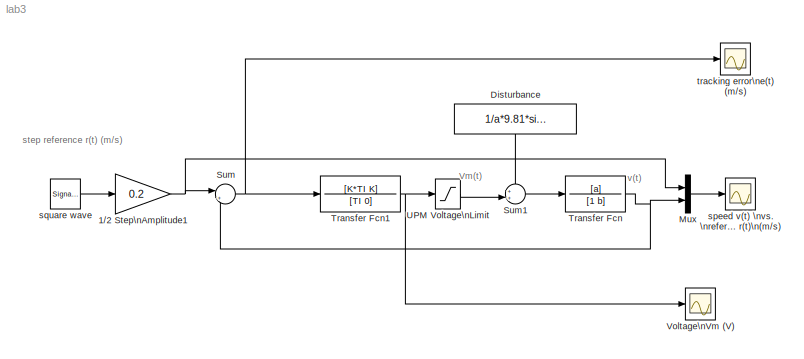
MODEL lab3
KIND model
BLOCK [Gain] 1//2 Step\nAmplitude1
  Gain = 0.2
  SID = 1
BLOCK [Constant] Disturbance
  SID = 2
  Value = 1/a*9.81*sin(theta)
BLOCK [Mux] Mux
  DisplayOption = bar
  Inputs = 2
  Ports = [2, 1]
  SID = 3
BLOCK [Sum] Sum
  IconShape = round
  InputSameDT = off
  Inputs = |+-
  OutDataTypeStr = Inherit: Inherit via internal rule
  Ports = [2, 1]
  SID = 4
  SaturateOnIntegerOverflow = off
BLOCK [Sum] Sum1
  IconShape = round
  InputSameDT = off
  Inputs = ++|
  OutDataTypeStr = Inherit: Inherit via internal rule
  Ports = [2, 1]
  SID = 5
  SaturateOnIntegerOverflow = off
BLOCK [TransferFcn] Transfer Fcn
  Denominator = [1 b]
  Numerator = [a]
  SID = 6
BLOCK [TransferFcn] Transfer Fcn1
  Denominator = [TI 0]
  Numerator = [K*TI K]
  SID = 7
BLOCK [Saturate] UPM Voltage\nLimit
  InputPortMap = u0
  LowerLimit = - VMAX_UPM
  Ports = [1, 1]
  SID = 8
  UpperLimit = VMAX_UPM
BLOCK [Scope] Voltage\nVm  (V)
  Floating = off
  NumInputPorts = 1
  Ports = [1]
  SID = 9
  ScopeSpecificationString = Simulink.scopes.TimeScopeBlockCfg('CurrentConfiguration', extmgr.ConfigurationSet(extmgr.Configuration('Core','General UI',true),extmgr.Configuration('Core','Source UI',true),extmgr.Configuration('Sources','WiredSimulink',true,'DataLoggingVariableName','Scope2','DataLoggingSaveFormat','Array','DataLoggingDecimation','1','DataLoggingDecimateData',true,'DataLogging',true),extmgr.Configuration('Visua...<+1680ch>
BLOCK [Scope] speed v(t) \nvs. \nreference r(t)\n(m//s)
  Floating = off
  NumInputPorts = 1
  Ports = [1]
  SID = 10
  ScopeSpecificationString = Simulink.scopes.TimeScopeBlockCfg('CurrentConfiguration', extmgr.ConfigurationSet(extmgr.Configuration('Core','General UI',true),extmgr.Configuration('Core','Source UI',true),extmgr.Configuration('Sources','WiredSimulink',true,'DataLoggingSaveFormat','Array','DataLoggingDecimation','1','DataLoggingDecimateData',true,'SampleTime','0.001','DataLogging',true,'DataLoggingVariableName','Scope1'),extmgr...<+1767ch>
BLOCK [SignalGenerator] square wave
  Frequency = .5
  Ports = [0, 1]
  SID = 11
  WaveForm = square
BLOCK [Scope] tracking error\ne(t)  (m//s)
  Floating = off
  NumInputPorts = 1
  Ports = [1]
  SID = 12
  ScopeSpecificationString = Simulink.scopes.TimeScopeBlockCfg('CurrentConfiguration', extmgr.ConfigurationSet(extmgr.Configuration('Core','General UI',true),extmgr.Configuration('Core','Source UI',true),extmgr.Configuration('Sources','WiredSimulink',true,'DataLoggingVariableName','ScopeData1','DataLoggingSaveFormat','StructureWithTime','DataLoggingLimitDataPoints',true,'DataLoggingDecimation','1','DataLoggingDecimateData',tr...<+1799ch>
ANNOTATION (root): Vm(t)
ANNOTATION (root): step reference r(t) (m/s)
ANNOTATION (root): v(t)
NET 1//2 Step\nAmplitude1:1 -> Mux:1, Sum:1
LINE Disturbance:1 -> Sum1:1
LINE Mux:1 -> speed v(t) \nvs. \nreference r(t)\n(m//s):1
LINE Sum1:1 -> Transfer Fcn:1
NET Sum:1 -> Transfer Fcn1:1, tracking error\ne(t)  (m//s):1
NET Transfer Fcn1:1 -> UPM Voltage\nLimit:1, Voltage\nVm  (V):1
NET Transfer Fcn:1 -> Mux:2, Sum:2
LINE UPM Voltage\nLimit:1 -> Sum1:2
LINE square wave:1 -> 1//2 Step\nAmplitude1:1
note: NET lines group one-source signal fan-out (src -> all destinations, sorted); 1:1 wires keep LINE
